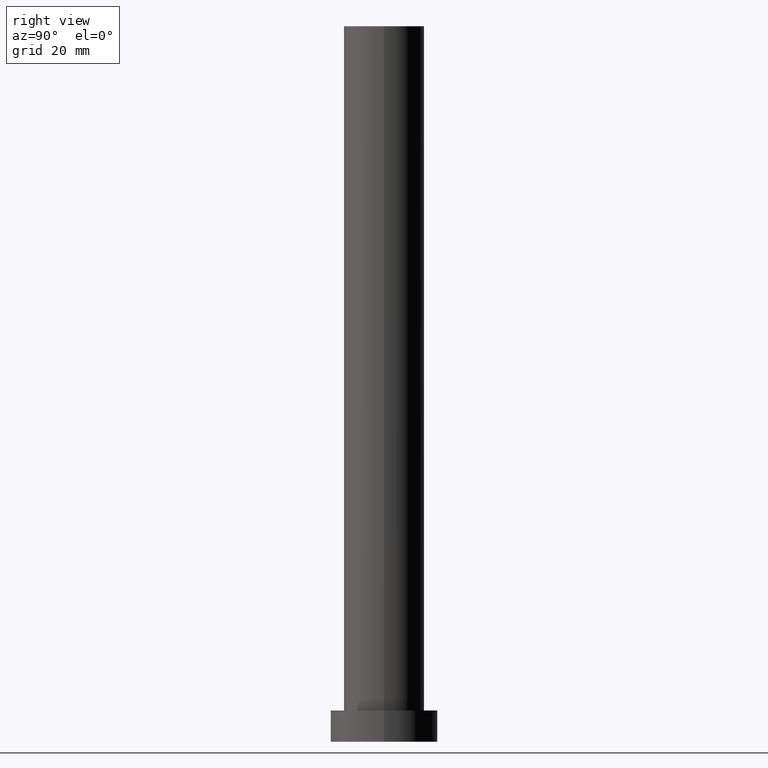
[diagram: clean part render]
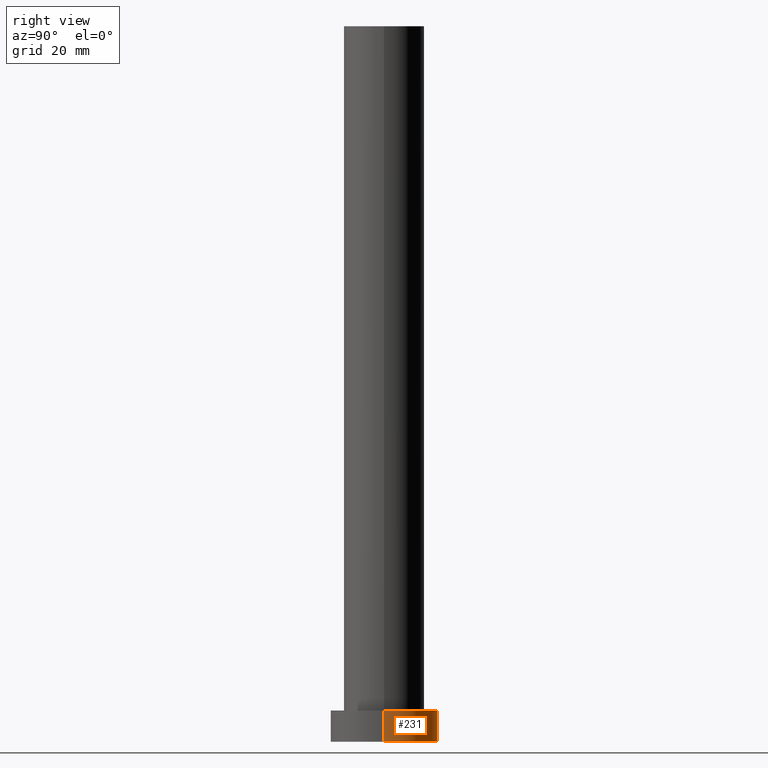
[diagram: same view with one face highlighted and labeled with its STEP entity id]
A machine part, right view. The second image highlights one B-rep face of the part: STEP entity #231.
In plain terms, the highlighted cylindrical surface (partial cylindrical patch) has radius 12 mm, axis along (-0, -0, -1).
Its self-contained STEP definition (entity closure, byte-faithful):
#11 = LINE ( 'NONE', #14, #152 ) ;
#14 = CARTESIAN_POINT ( 'NONE',  ( 12.00000000000000178, 1.469576158976824144E-15, 7.000000000000000000 ) ) ;
#18 = EDGE_CURVE ( 'NONE', #141, #242, #11, .T. ) ;
#19 = DIRECTION ( 'NONE',  ( 1.000000000000000000, 0.000000000000000000, 0.000000000000000000 ) ) ;
#21 = ORIENTED_EDGE ( 'NONE', *, *, #124, .F. ) ;
#26 = ORIENTED_EDGE ( 'NONE', *, *, #183, .F. ) ;
#27 = AXIS2_PLACEMENT_3D ( 'NONE', #237, #212, #19 ) ;
#39 = LINE ( 'NONE', #54, #205 ) ;
#45 = ORIENTED_EDGE ( 'NONE', *, *, #218, .T. ) ;
#51 = AXIS2_PLACEMENT_3D ( 'NONE', #55, #103, #84 ) ;
#54 = CARTESIAN_POINT ( 'NONE',  ( -12.00000000000000178, 0.000000000000000000, 7.000000000000000000 ) ) ;
#55 = CARTESIAN_POINT ( 'NONE',  ( 0.000000000000000000, 0.000000000000000000, 7.000000000000000000 ) ) ;
#84 = DIRECTION ( 'NONE',  ( -1.000000000000000000, 0.000000000000000000, 0.000000000000000000 ) ) ;
#102 = DIRECTION ( 'NONE',  ( 0.000000000000000000, 0.000000000000000000, 1.000000000000000000 ) ) ;
#103 = DIRECTION ( 'NONE',  ( -0.000000000000000000, -0.000000000000000000, -1.000000000000000000 ) ) ;
#112 = CIRCLE ( 'NONE', #200, 12.00000000000000178 ) ;
#124 = EDGE_CURVE ( 'NONE', #141, #203, #157, .T. ) ;
#141 = VERTEX_POINT ( 'NONE', #162 ) ;
#152 = VECTOR ( 'NONE', #191, 1000.000000000000000 ) ;
#153 = VERTEX_POINT ( 'NONE', #235 ) ;
#154 = FACE_OUTER_BOUND ( 'NONE', #225, .T. ) ;
#157 = CIRCLE ( 'NONE', #27, 12.00000000000000178 ) ;
#162 = CARTESIAN_POINT ( 'NONE',  ( 12.00000000000000178, 1.469576158976824144E-15, 7.000000000000000000 ) ) ;
#178 = DIRECTION ( 'NONE',  ( 1.000000000000000000, 0.000000000000000000, 0.000000000000000000 ) ) ;
#183 = EDGE_CURVE ( 'NONE', #203, #153, #39, .T. ) ;
#187 = ORIENTED_EDGE ( 'NONE', *, *, #18, .T. ) ;
#191 = DIRECTION ( 'NONE',  ( -0.000000000000000000, -0.000000000000000000, -1.000000000000000000 ) ) ;
#194 = CARTESIAN_POINT ( 'NONE',  ( 12.00000000000000178, 1.469576158976824144E-15, 0.000000000000000000 ) ) ;
#196 = CARTESIAN_POINT ( 'NONE',  ( 0.000000000000000000, 0.000000000000000000, 0.000000000000000000 ) ) ;
#200 = AXIS2_PLACEMENT_3D ( 'NONE', #196, #102, #178 ) ;
#203 = VERTEX_POINT ( 'NONE', #234 ) ;
#205 = VECTOR ( 'NONE', #211, 1000.000000000000000 ) ;
#210 = CYLINDRICAL_SURFACE ( 'NONE', #51, 12.00000000000000178 ) ;
#211 = DIRECTION ( 'NONE',  ( -0.000000000000000000, -0.000000000000000000, -1.000000000000000000 ) ) ;
#212 = DIRECTION ( 'NONE',  ( 0.000000000000000000, 0.000000000000000000, 1.000000000000000000 ) ) ;
#218 = EDGE_CURVE ( 'NONE', #242, #153, #112, .T. ) ;
#225 = EDGE_LOOP ( 'NONE', ( #21, #187, #45, #26 ) ) ;
#231 = ADVANCED_FACE ( 'NONE', ( #154 ), #210, .T. ) ;
#234 = CARTESIAN_POINT ( 'NONE',  ( -12.00000000000000178, 0.000000000000000000, 7.000000000000000000 ) ) ;
#235 = CARTESIAN_POINT ( 'NONE',  ( -12.00000000000000178, 0.000000000000000000, 0.000000000000000000 ) ) ;
#237 = CARTESIAN_POINT ( 'NONE',  ( 0.000000000000000000, 0.000000000000000000, 7.000000000000000000 ) ) ;
#242 = VERTEX_POINT ( 'NONE', #194 ) ;